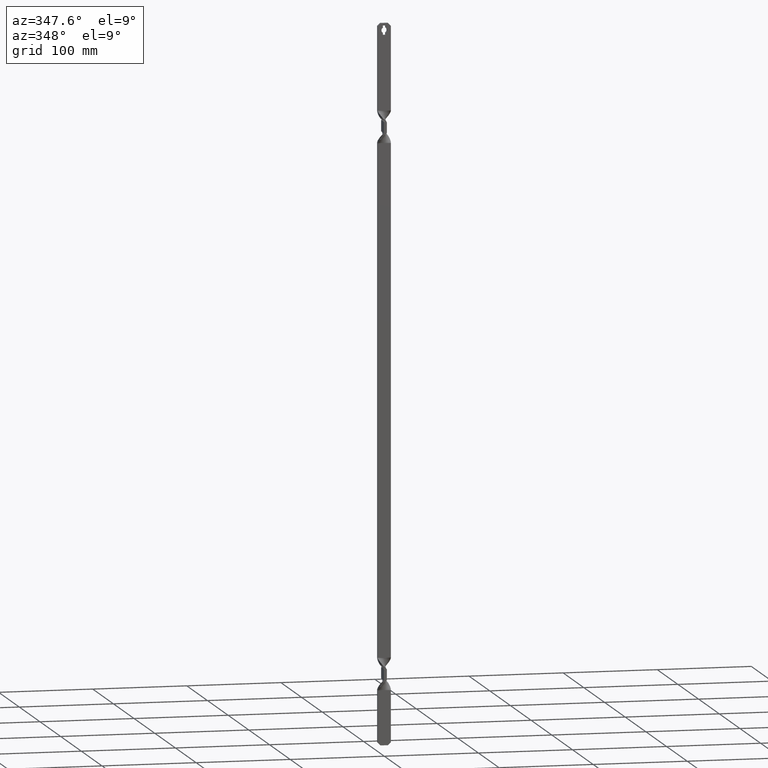
[diagram: clean part render]
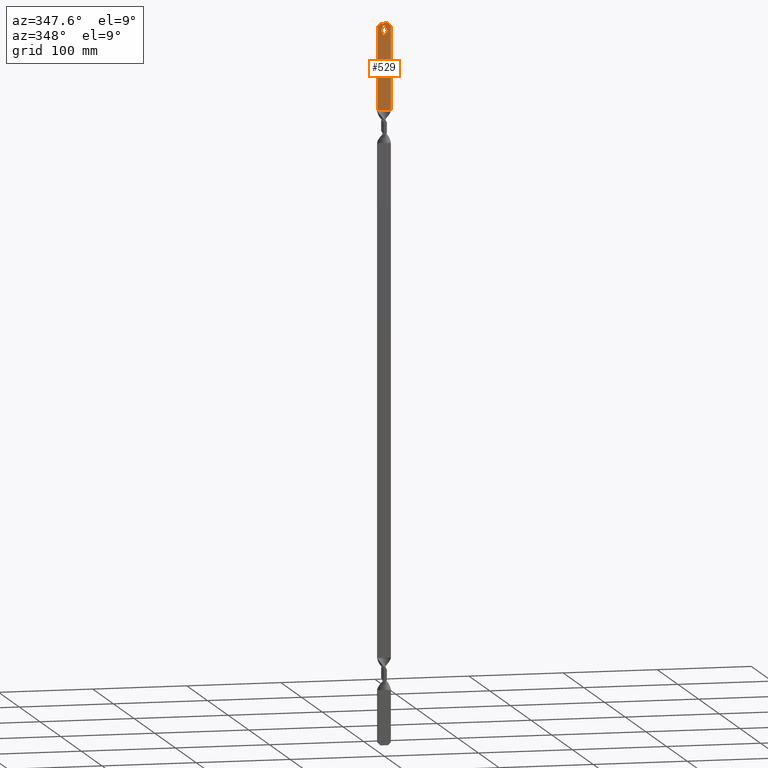
[diagram: same view with one face highlighted and labeled with its STEP entity id]
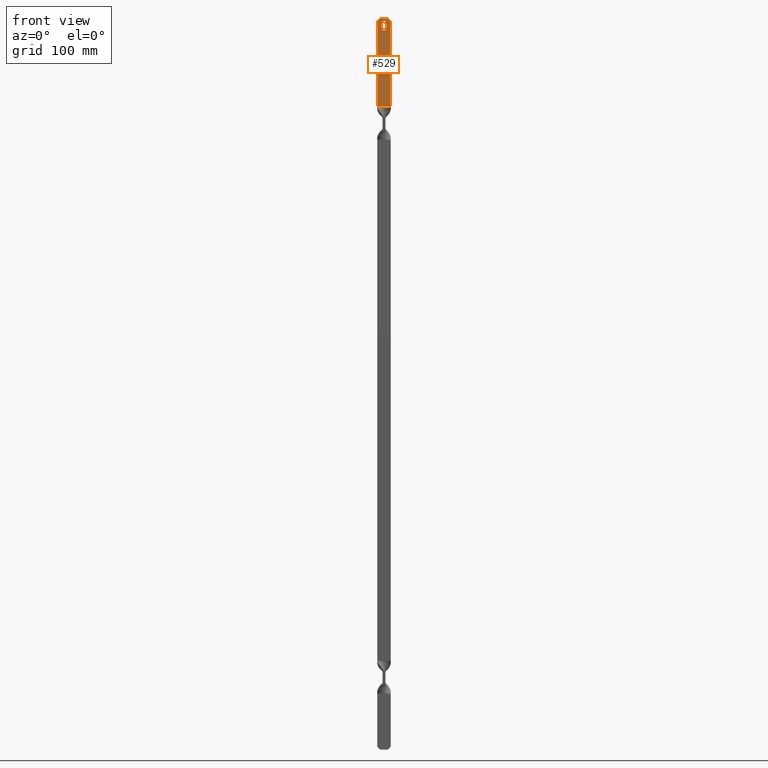
[diagram: same view with one face highlighted and labeled with its STEP entity id]
A machine part, auxiliary view. The second image highlights one B-rep face of the part: STEP entity #529.
A second angle (front view) of the same face is appended — the face is thin or edge-on in the first view.
In plain terms, the highlighted face is a freeform B-spline surface patch.
Its self-contained STEP definition (entity closure, byte-faithful):
#58=CARTESIAN_POINT('',(1.550000073621035,1.236091E-013,748.873214767921920));
#59=VERTEX_POINT('',#58);
#60=CARTESIAN_POINT('',(1.550000073621005,-2.220446E-013,754.126785232077960));
#61=VERTEX_POINT('',#60);
#62=CARTESIAN_POINT('',(1.550000073621143,-2.220446E-013,748.873214767921700));
#63=CARTESIAN_POINT('',(3.050000144867131,-2.220446E-013,749.758327183078560));
#64=CARTESIAN_POINT('',(3.050000144867131,-2.220446E-013,751.500000000000000));
#65=CARTESIAN_POINT('',(3.050000144867131,-2.220446E-013,753.241672816921320));
#66=CARTESIAN_POINT('',(1.550000073621122,-2.220446E-013,754.126785232078190));
#74=(BOUNDED_CURVE()B_SPLINE_CURVE(2,(#62,#63,#64,#65,#66),.UNSPECIFIED.,.F.,.U.)B_SPLINE_CURVE_WITH_KNOTS((3,2,3),(0.0,0.500000000000000,1.0),.UNSPECIFIED.)CURVE()GEOMETRIC_REPRESENTATION_ITEM()RATIONAL_B_SPLINE_CURVE((1.0,0.868388369714709,1.0,0.868388369714709,1.0))REPRESENTATION_ITEM(''));
#75=EDGE_CURVE('',#59,#61,#74,.T.);
#114=CARTESIAN_POINT('',(1.550000073621005,-2.220446E-013,746.499999762512970));
#115=VERTEX_POINT('',#114);
#116=CARTESIAN_POINT('',(1.550000073621005,-2.220446E-013,746.499999762512970));
#117=CARTESIAN_POINT('',(1.550000073621035,1.236091E-013,748.873214767921920));
#118=QUASI_UNIFORM_CURVE('',1,(#116,#117),.UNSPECIFIED.,.F.,.U.);
#119=EDGE_CURVE('',#115,#59,#118,.T.);
#142=CARTESIAN_POINT('',(-1.550000073621090,-2.220446E-013,746.499999762512970));
#143=VERTEX_POINT('',#142);
#144=CARTESIAN_POINT('',(-1.550000073621090,-2.220446E-013,746.499999762512970));
#145=CARTESIAN_POINT('',(1.550000073621005,-2.220446E-013,746.499999762512970));
#146=QUASI_UNIFORM_CURVE('',1,(#144,#145),.UNSPECIFIED.,.F.,.U.);
#147=EDGE_CURVE('',#143,#115,#146,.T.);
#170=CARTESIAN_POINT('',(-1.550000073621205,-2.220446E-013,748.873214767921920));
#171=VERTEX_POINT('',#170);
#172=CARTESIAN_POINT('',(-1.550000073621205,-2.220446E-013,748.873214767921920));
#173=CARTESIAN_POINT('',(-1.550000073621090,-2.220446E-013,746.499999762512970));
#174=QUASI_UNIFORM_CURVE('',1,(#172,#173),.UNSPECIFIED.,.F.,.U.);
#175=EDGE_CURVE('',#171,#143,#174,.T.);
#207=CARTESIAN_POINT('',(-1.550000073621090,-2.220446E-013,754.126785232077960));
#208=VERTEX_POINT('',#207);
#209=CARTESIAN_POINT('',(-1.550000073621236,-2.220446E-013,754.126785232078190));
#210=CARTESIAN_POINT('',(-3.050000144867329,-2.220446E-013,753.241672816921210));
#211=CARTESIAN_POINT('',(-3.050000144867329,-2.220446E-013,751.500000000000000));
#212=CARTESIAN_POINT('',(-3.050000144867329,-2.220446E-013,749.758327183078560));
#213=CARTESIAN_POINT('',(-1.550000073621320,-2.220446E-013,748.873214767921700));
#221=(BOUNDED_CURVE()B_SPLINE_CURVE(2,(#209,#210,#211,#212,#213),.UNSPECIFIED.,.F.,.U.)B_SPLINE_CURVE_WITH_KNOTS((3,2,3),(0.0,0.500000000000000,1.0),.UNSPECIFIED.)CURVE()GEOMETRIC_REPRESENTATION_ITEM()RATIONAL_B_SPLINE_CURVE((1.0,0.868388369714698,1.0,0.868388369714698,1.0))REPRESENTATION_ITEM(''));
#222=EDGE_CURVE('',#208,#171,#221,.T.);
#255=CARTESIAN_POINT('',(-1.550000073621090,-2.220446E-013,756.500000237487030));
#256=VERTEX_POINT('',#255);
#257=CARTESIAN_POINT('',(-1.550000073621090,-2.220446E-013,756.500000237487030));
#258=CARTESIAN_POINT('',(-1.550000073621090,-2.220446E-013,754.126785232077960));
#259=QUASI_UNIFORM_CURVE('',1,(#257,#258),.UNSPECIFIED.,.F.,.U.);
#260=EDGE_CURVE('',#256,#208,#259,.T.);
#283=CARTESIAN_POINT('',(1.550000073621005,-2.220446E-013,756.500000237487030));
#284=VERTEX_POINT('',#283);
#285=CARTESIAN_POINT('',(1.550000073621005,-2.220446E-013,756.500000237487030));
#286=CARTESIAN_POINT('',(-1.550000073621090,-2.220446E-013,756.500000237487030));
#287=QUASI_UNIFORM_CURVE('',1,(#285,#286),.UNSPECIFIED.,.F.,.U.);
#288=EDGE_CURVE('',#284,#256,#287,.T.);
#311=CARTESIAN_POINT('',(1.550000073621005,-2.220446E-013,754.126785232077960));
#312=CARTESIAN_POINT('',(1.550000073621005,-2.220446E-013,756.500000237487030));
#313=QUASI_UNIFORM_CURVE('',1,(#311,#312),.UNSPECIFIED.,.F.,.U.);
#314=EDGE_CURVE('',#61,#284,#313,.T.);
#331=CARTESIAN_POINT('',(6.999999999999780,5.684342E-014,756.000016932842070));
#332=VERTEX_POINT('',#331);
#333=CARTESIAN_POINT('',(3.999999999999885,3.248195E-014,759.000016932841050));
#334=VERTEX_POINT('',#333);
#335=CARTESIAN_POINT('',(6.999999999999780,5.684342E-014,756.000016932842070));
#336=CARTESIAN_POINT('',(3.999999999999885,3.248195E-014,759.000016932841050));
#337=QUASI_UNIFORM_CURVE('',1,(#335,#336),.UNSPECIFIED.,.F.,.U.);
#338=EDGE_CURVE('',#332,#334,#337,.T.);
#376=CARTESIAN_POINT('',(-7.000000000000110,-5.684342E-014,756.000016932841050));
#377=VERTEX_POINT('',#376);
#383=CARTESIAN_POINT('',(-4.000000000000116,-3.248195E-014,759.000016932841050));
#384=VERTEX_POINT('',#383);
#385=CARTESIAN_POINT('',(-4.000000000000116,-3.248195E-014,759.000016932841050));
#386=CARTESIAN_POINT('',(-7.000000000000110,-5.684342E-014,756.000016932841050));
#387=QUASI_UNIFORM_CURVE('',1,(#385,#386),.UNSPECIFIED.,.F.,.U.);
#388=EDGE_CURVE('',#384,#377,#387,.T.);
#409=CARTESIAN_POINT('',(-4.000000000000116,-3.248195E-014,759.000016932841050));
#410=CARTESIAN_POINT('',(3.999999999999885,3.248195E-014,759.000016932841050));
#411=QUASI_UNIFORM_CURVE('',1,(#409,#410),.UNSPECIFIED.,.F.,.U.);
#412=EDGE_CURVE('',#384,#334,#411,.T.);
#423=CARTESIAN_POINT('',(-7.000000000000110,-5.684342E-014,667.500000000000000));
#424=VERTEX_POINT('',#423);
#425=CARTESIAN_POINT('',(-7.000000000000110,-5.684342E-014,756.000016932841050));
#426=CARTESIAN_POINT('',(-7.000000000000110,-5.684342E-014,667.500000000000000));
#427=QUASI_UNIFORM_CURVE('',1,(#425,#426),.UNSPECIFIED.,.F.,.U.);
#428=EDGE_CURVE('',#377,#424,#427,.T.);
#487=CARTESIAN_POINT('',(6.999999999999890,5.681219E-014,667.500000000000000));
#488=VERTEX_POINT('',#487);
#489=CARTESIAN_POINT('',(6.999999999999780,5.684342E-014,756.000016932842070));
#490=CARTESIAN_POINT('',(6.999999999999890,5.681219E-014,667.500000000000000));
#491=QUASI_UNIFORM_CURVE('',1,(#489,#490),.UNSPECIFIED.,.F.,.U.);
#492=EDGE_CURVE('',#332,#488,#491,.T.);
#502=CARTESIAN_POINT('',(7.699299972865173,-5.684342E-014,662.929575312256360));
#503=CARTESIAN_POINT('',(-7.699300348374656,-5.684342E-014,662.929575312256360));
#504=CARTESIAN_POINT('',(7.699299972865173,-5.684342E-014,763.570424441032970));
#505=CARTESIAN_POINT('',(-7.699300348374656,-5.684342E-014,763.570424441032970));
#506=B_SPLINE_SURFACE_WITH_KNOTS('',1,1,((#502,#504),(#503,#505)),.UNSPECIFIED.,.F.,.F.,.U.,(2,2),(2,2),(0.0,15.398600321239829),(0.0,100.640849128776590),.UNSPECIFIED.);
#507=ORIENTED_EDGE('',*,*,#412,.F.);
#508=ORIENTED_EDGE('',*,*,#388,.T.);
#509=ORIENTED_EDGE('',*,*,#428,.T.);
#510=CARTESIAN_POINT('',(-7.000000000000110,-5.684342E-014,667.500000000000000));
#511=CARTESIAN_POINT('',(6.999999999999890,5.681219E-014,667.500000000000000));
#512=QUASI_UNIFORM_CURVE('',1,(#510,#511),.UNSPECIFIED.,.F.,.U.);
#513=EDGE_CURVE('',#424,#488,#512,.T.);
#514=ORIENTED_EDGE('',*,*,#513,.T.);
#515=ORIENTED_EDGE('',*,*,#492,.F.);
#516=ORIENTED_EDGE('',*,*,#338,.T.);
#517=EDGE_LOOP('',(#507,#508,#509,#514,#515,#516));
#518=FACE_OUTER_BOUND('',#517,.T.);
#519=ORIENTED_EDGE('',*,*,#288,.F.);
#520=ORIENTED_EDGE('',*,*,#314,.F.);
#521=ORIENTED_EDGE('',*,*,#75,.F.);
#522=ORIENTED_EDGE('',*,*,#119,.F.);
#523=ORIENTED_EDGE('',*,*,#147,.F.);
#524=ORIENTED_EDGE('',*,*,#175,.F.);
#525=ORIENTED_EDGE('',*,*,#222,.F.);
#526=ORIENTED_EDGE('',*,*,#260,.F.);
#527=EDGE_LOOP('',(#519,#520,#521,#522,#523,#524,#525,#526));
#528=FACE_BOUND('',#527,.T.);
#529=ADVANCED_FACE('',(#518,#528),#506,.F.);